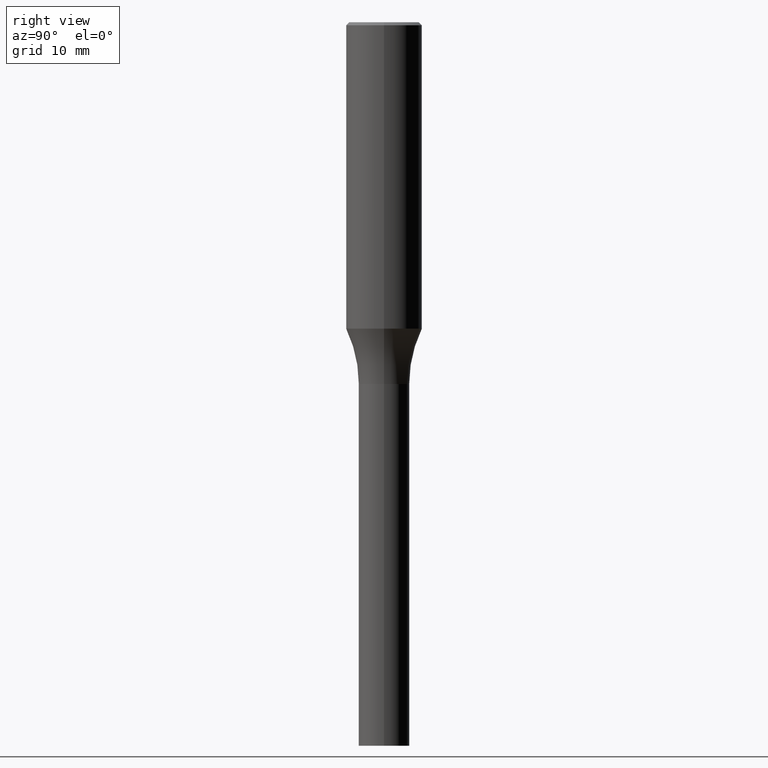
[diagram: clean part render]
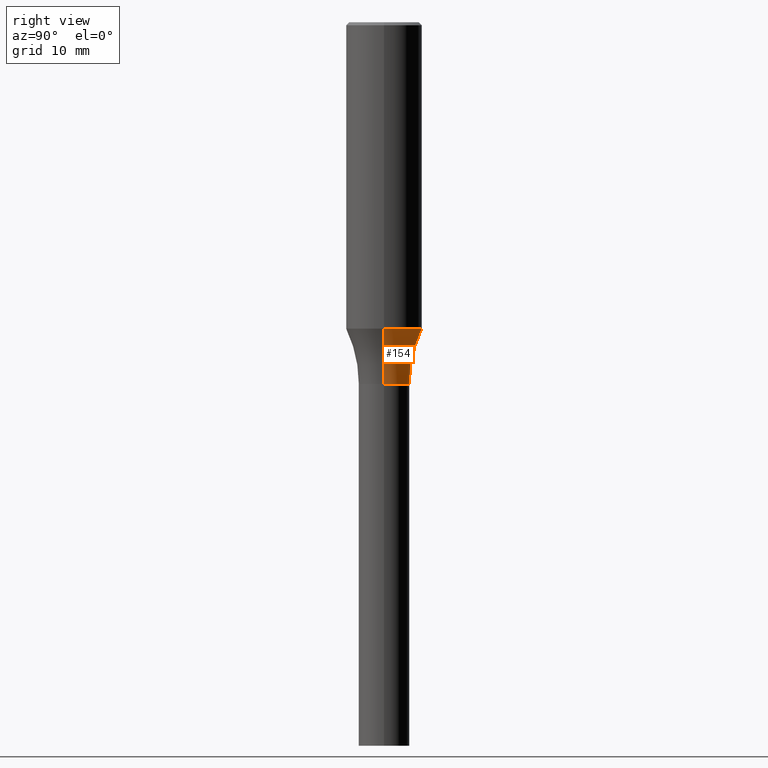
[diagram: same view with one face highlighted and labeled with its STEP entity id]
A machine part, right view. The second image highlights one B-rep face of the part: STEP entity #154.
In plain terms, the highlighted toroidal blend (fillet) surface has major radius 19.05 mm and minor (blend) radius 15.875 mm.
Its self-contained STEP definition (entity closure, byte-faithful):
#9 = CARTESIAN_POINT ( 'NONE',  ( 4.355379943815728162E-29, -6.218328264479641837E-15, -1.780999999999999917 ) ) ;
#10 = AXIS2_PLACEMENT_3D ( 'NONE', #12, #252, #251 ) ;
#11 = ORIENTED_EDGE ( 'NONE', *, *, #374, .T. ) ;
#12 = CARTESIAN_POINT ( 'NONE',  ( 3.689157981581848142E-29, -5.267139869524930466E-15, -1.508568816028707404 ) ) ;
#20 = TOROIDAL_SURFACE ( 'NONE', #376, 0.7499999999999998890, 0.6250000000000000000 ) ;
#25 = AXIS2_PLACEMENT_3D ( 'NONE', #9, #392, #110 ) ;
#88 = FACE_OUTER_BOUND ( 'NONE', #336, .T. ) ;
#108 = DIRECTION ( 'NONE',  ( 7.105427357601001859E-15, 1.000000000000000000, -3.491481338843145583E-15 ) ) ;
#110 = DIRECTION ( 'NONE',  ( 1.000000000000000000, -6.982962677686265133E-15, 0.000000000000000000 ) ) ;
#151 = DIRECTION ( 'NONE',  ( -1.000000000000000000, 7.105427357601001859E-15, 0.000000000000000000 ) ) ;
#154 = ADVANCED_FACE ( 'NONE', ( #88 ), #20, .F. ) ;
#161 = CARTESIAN_POINT ( 'NONE',  ( 4.355379943815728162E-29, -6.218328264479641837E-15, -1.780999999999999917 ) ) ;
#169 = CIRCLE ( 'NONE', #25, 0.1249999999999999584 ) ;
#176 = VERTEX_POINT ( 'NONE', #257 ) ;
#178 = CIRCLE ( 'NONE', #10, 0.1875000000000000555 ) ;
#199 = DIRECTION ( 'NONE',  ( 1.000000000000000000, -6.982962677686265133E-15, 0.000000000000000000 ) ) ;
#208 = VERTEX_POINT ( 'NONE', #460 ) ;
#245 = EDGE_CURVE ( 'NONE', #176, #456, #250, .T. ) ;
#250 = CIRCLE ( 'NONE', #459, 0.6250000000000000000 ) ;
#251 = DIRECTION ( 'NONE',  ( 1.000000000000000000, -6.982962677686265922E-15, 0.000000000000000000 ) ) ;
#252 = DIRECTION ( 'NONE',  ( -2.445468806185136597E-29, 3.491481338843145583E-15, 1.000000000000000000 ) ) ;
#253 = CARTESIAN_POINT ( 'NONE',  ( 0.1875000000000000555, -6.576445371591104685E-15, -1.508568816028707404 ) ) ;
#257 = CARTESIAN_POINT ( 'NONE',  ( -0.1875000000000000555, -3.934872239974741828E-15, -1.508568816028707404 ) ) ;
#276 = CARTESIAN_POINT ( 'NONE',  ( -0.1249999999999999584, -4.632511042377129611E-15, -1.780999999999999917 ) ) ;
#287 = AXIS2_PLACEMENT_3D ( 'NONE', #398, #468, #199 ) ;
#311 = ORIENTED_EDGE ( 'NONE', *, *, #245, .F. ) ;
#313 = EDGE_CURVE ( 'NONE', #417, #176, #178, .T. ) ;
#336 = EDGE_LOOP ( 'NONE', ( #311, #383, #11, #344 ) ) ;
#344 = ORIENTED_EDGE ( 'NONE', *, *, #420, .T. ) ;
#350 = CIRCLE ( 'NONE', #287, 0.6250000000000000000 ) ;
#369 = DIRECTION ( 'NONE',  ( -2.445468806185136597E-29, 3.491481338843145583E-15, 1.000000000000000000 ) ) ;
#371 = DIRECTION ( 'NONE',  ( 1.000000000000000000, -6.982962677686265922E-15, 4.883557194083112340E-29 ) ) ;
#374 = EDGE_CURVE ( 'NONE', #417, #208, #350, .T. ) ;
#376 = AXIS2_PLACEMENT_3D ( 'NONE', #161, #369, #371 ) ;
#383 = ORIENTED_EDGE ( 'NONE', *, *, #313, .F. ) ;
#392 = DIRECTION ( 'NONE',  ( -2.445468806185136597E-29, 3.491481338843145583E-15, 1.000000000000000000 ) ) ;
#395 = CARTESIAN_POINT ( 'NONE',  ( -0.7499999999999998890, -8.892577462788912314E-16, -1.780999999999999917 ) ) ;
#398 = CARTESIAN_POINT ( 'NONE',  ( 0.7499999999999998890, -1.145555027274434187E-14, -1.780999999999999917 ) ) ;
#417 = VERTEX_POINT ( 'NONE', #253 ) ;
#420 = EDGE_CURVE ( 'NONE', #208, #456, #169, .T. ) ;
#456 = VERTEX_POINT ( 'NONE', #276 ) ;
#459 = AXIS2_PLACEMENT_3D ( 'NONE', #395, #108, #151 ) ;
#460 = CARTESIAN_POINT ( 'NONE',  ( 0.1249999999999999584, -7.091198599190425175E-15, -1.780999999999999917 ) ) ;
#468 = DIRECTION ( 'NONE',  ( -6.982962677686266711E-15, -1.000000000000000000, 3.491481338843145583E-15 ) ) ;